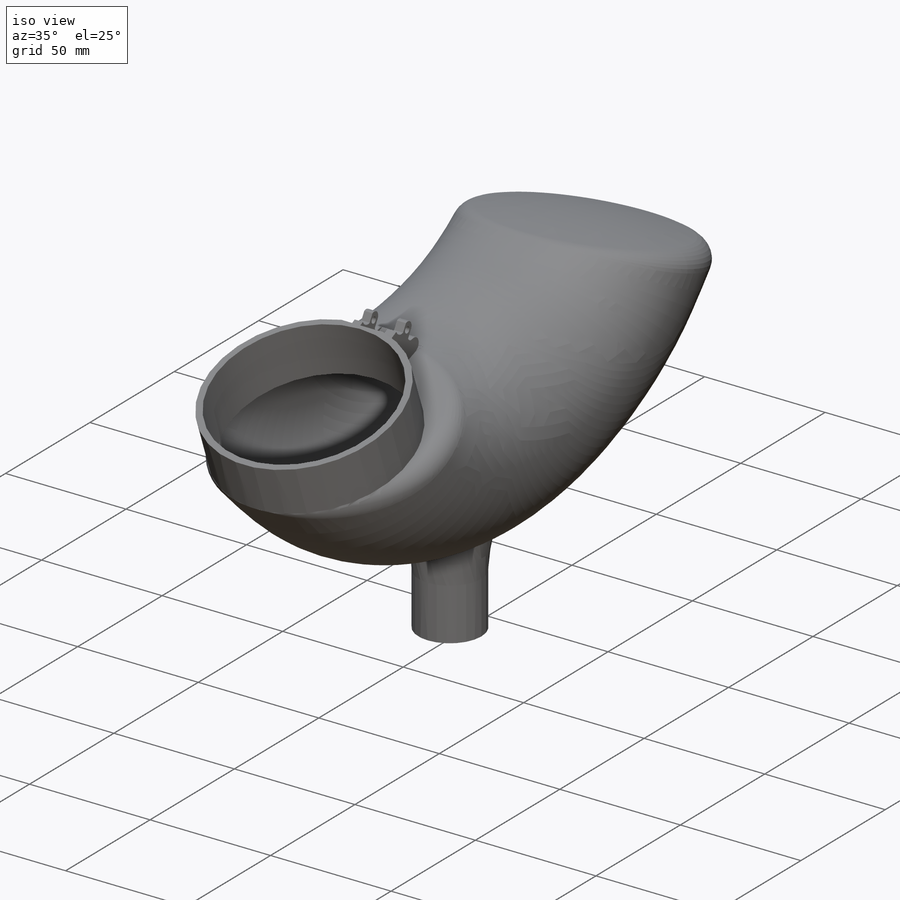
[diagram: iso view]
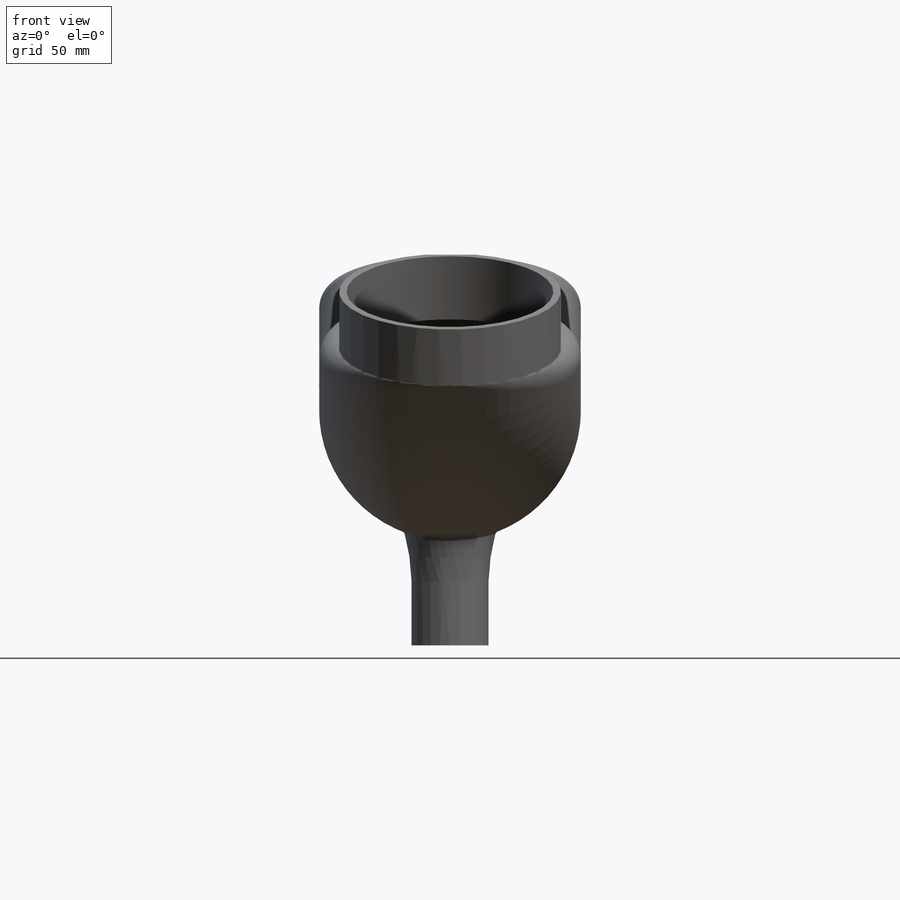
[diagram: front view]
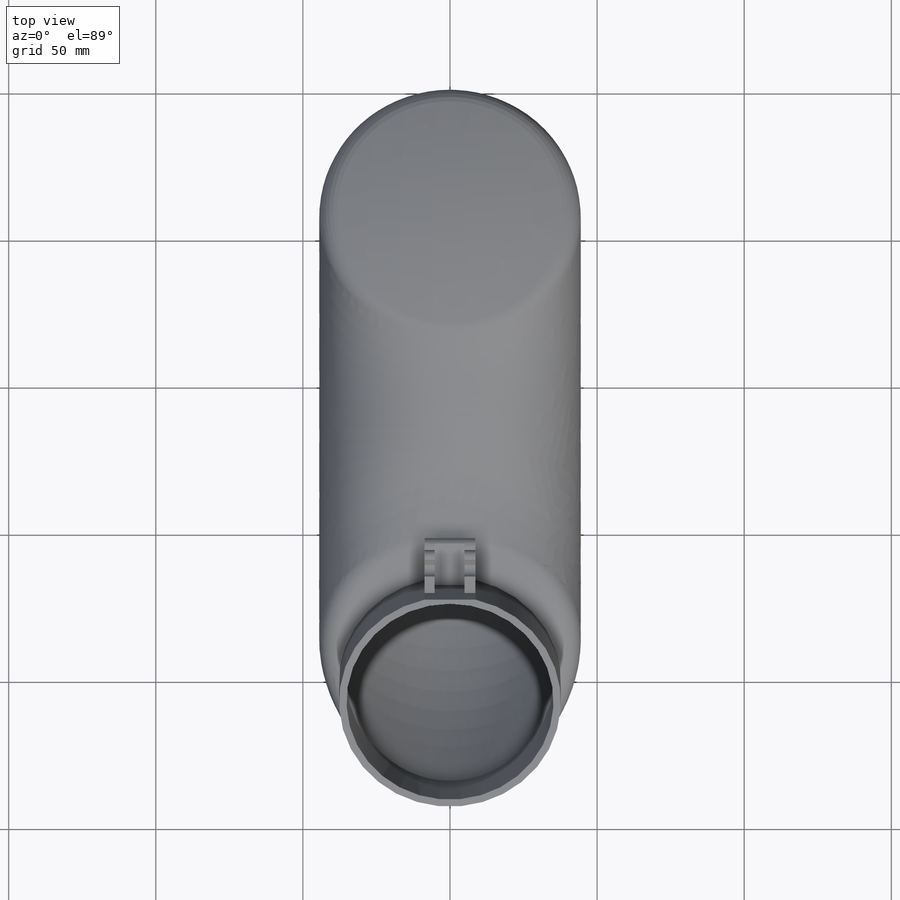
[diagram: top view]
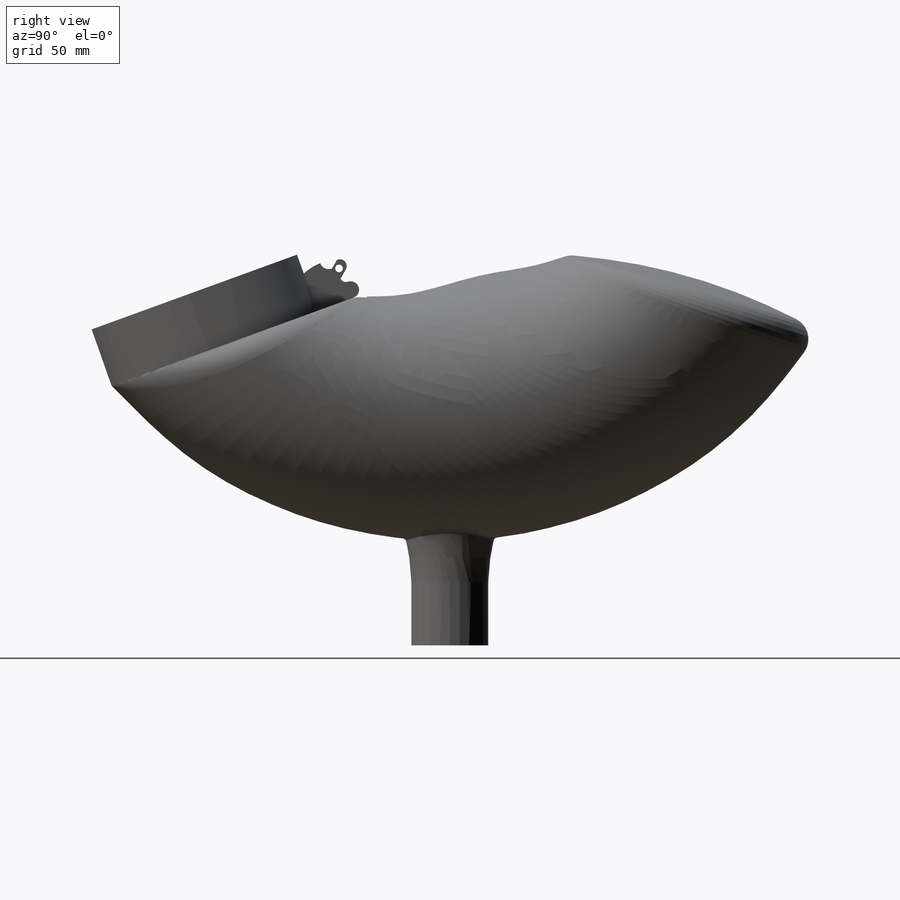
[diagram: right view]
SOLIDWORKS PART (.sldprt)
format: sldprt  version: not decoded by parser v0  size: 674,816 bytes
history: native  units: mm
features: sketch x15, plane x4, cut_extrude x4, extrude x3, fillet x3, material x1, dome x1, shell x1 (+13 scaffold rows collapsed)
feature tree (45):
  scaffold x13  (default folders/planes/origin — collapsed)
  material  "Material <not specified>"
  sketch  "Sketch2"
  plane  "Plane2"
  plane  "Plane3"
  sketch  "Sketch3"  dims[D1=88.9mm D2=63.5mm]
  sketch  "Sketch4"  dims[c1.D1=~29.838877mm c1.D2=88.9mm c2.D1=101.6mm]
  sketch  "3DSketch1"  dims[c1.D1=~75.154394mm c1.D2=50.8mm c2.D1=~75.154394mm c2.D2=76.2mm c3.D1=~148.034692mm c3.D2=177.8mm c4.D1=114.3mm]
  sketch  "Sketch7"  dims[D1=75.438mm]
  extrude  "Boss-Extrude1"  Depth=20.32mm
  dome  "Dome1"
  fillet  "Fillet1"  Radius=7.62mm
  plane  "Plane4"  Offset=95.25mm
  sketch  "Sketch9"  dims[c1.D2=~38.254181mm c1.D3=33.655mm c1.D1=~243.783132mm c2.D2=121.8946mm]
  plane  "Plane5"  Offset=21.336mm
  sketch  "Sketch10"  dims[D1=26.162mm]
  sketch  "Loft2"
  sketch  "Sketch11"
  extrude  "Boss-Extrude2"  Depth=21.59mm
  shell  "Shell1"  Thickness=2.54mm
  fillet  "Fillet3"  Radius=7.62mm
  sketch  "Sketch12"  dims[D1=20.32mm]
  sketch  "Sketch14"  dims[D1=10.16mm]
  cut_extrude  "Cut-Extrude2"  Depth=15.24mm
  fillet  "Fillet4"  Radius=1.27mm
  sketch  "Sketch15"
  extrude  "Boss-Extrude3"  [1 undecoded]
  sketch  "Sketch18"  dims[D1=0.0mm]
  cut_extrude  "Cut-Extrude3"  [1 undecoded]
  sketch  "Sketch20"
  cut_extrude  "Cut-Extrude5"  [1 undecoded]
  sketch  "Sketch21"  dims[D1=10.16mm D2=10.16mm]
  cut_extrude  "Cut-Extrude6"  Depth=15.24mm
decode coverage: 18 of 27 modeling features carry decoded parameters
note: ~ marks probable driven/reference dimensions
note: 3 parameter values undecoded
summary: no parameter record found for 3 features
note: suppression state not decoded; provenance and decode notes live in map.json
